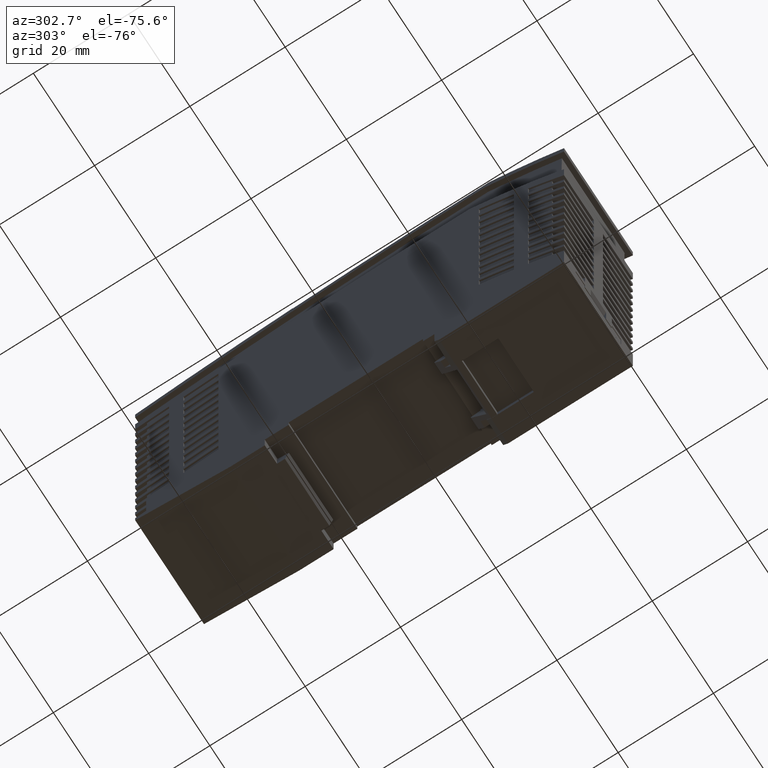
[diagram: clean part render]
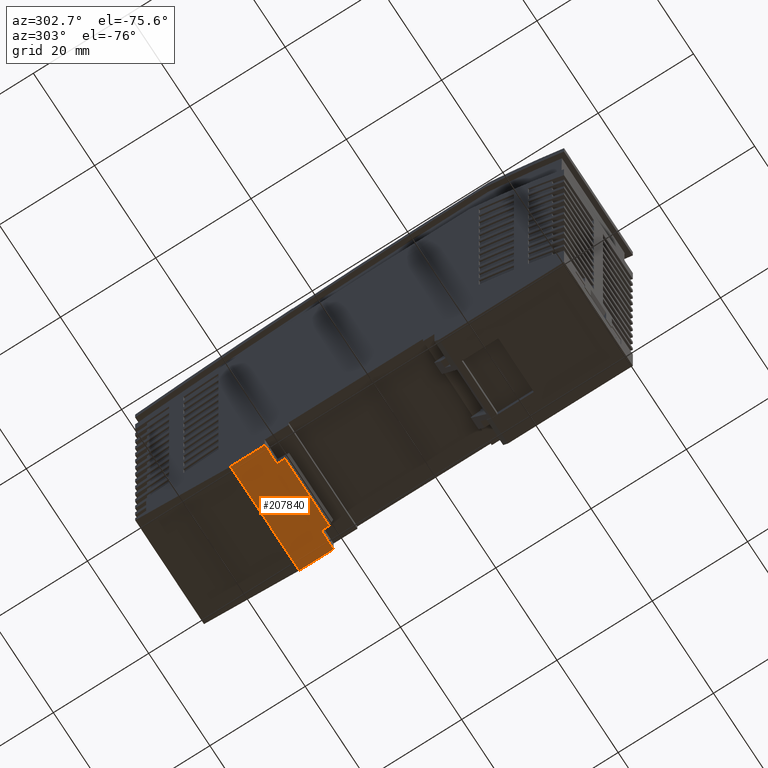
[diagram: same view with one face highlighted and labeled with its STEP entity id]
A machine part, auxiliary view. The second image highlights one B-rep face of the part: STEP entity #207840.
In plain terms, the highlighted planar face has unit normal (0, 0, 1).
Its self-contained STEP definition (entity closure, byte-faithful):
#72690=CARTESIAN_POINT('',(24.998476392667,2.02907227621137,1.));
#72700=VERTEX_POINT('',#72690);
#72730=CARTESIAN_POINT('',(0.,2.02907227621137,1.));
#72740=DIRECTION('',(-1.,0.,0.));
#72750=VECTOR('',#72740,1.);
#72760=LINE('',#72730,#72750);
#72770=CARTESIAN_POINT('',(17.7984763926468,2.02907227621137,1.));
#72780=VERTEX_POINT('',#72770);
#72790=EDGE_CURVE('',#72700,#72780,#72760,.T.);
#189950=CARTESIAN_POINT('',(17.7984763926468,2.02907227621137,-21.5));
#189960=VERTEX_POINT('',#189950);
#189990=CARTESIAN_POINT('',(0.,2.02907227621137,-21.5));
#190000=DIRECTION('',(1.,0.,0.));
#190010=VECTOR('',#190000,1.);
#190020=LINE('',#189990,#190010);
#190030=CARTESIAN_POINT('',(24.998476392667,2.02907227621137,-21.5));
#190040=VERTEX_POINT('',#190030);
#190050=EDGE_CURVE('',#189960,#190040,#190020,.T.);
#207350=CARTESIAN_POINT('',(17.7984763926468,2.02907227621137,-37.75));
#207360=DIRECTION('',(0.,1.,-0.));
#207370=DIRECTION('',(-1.,0.,0.));
#207380=AXIS2_PLACEMENT_3D('',#207350,#207360,#207370);
#207390=PLANE('',#207380);
#207400=CARTESIAN_POINT('',(24.998476392667,2.02907227621137,16.25));
#207410=DIRECTION('',(0.,0.,-1.));
#207420=VECTOR('',#207410,1.);
#207430=LINE('',#207400,#207420);
#207440=EDGE_CURVE('',#72700,#190040,#207430,.T.);
#207450=ORIENTED_EDGE('',*,*,#207440,.F.);
#207460=ORIENTED_EDGE('',*,*,#190050,.T.);
#207470=CARTESIAN_POINT('',(17.7984763926468,2.02907227621137,16.25));
#207480=DIRECTION('',(0.,0.,-1.));
#207490=VECTOR('',#207480,1.);
#207500=LINE('',#207470,#207490);
#207510=CARTESIAN_POINT('',(17.7984763926468,2.02907227621137,-17.5));
#207520=VERTEX_POINT('',#207510);
#207530=EDGE_CURVE('',#207520,#189960,#207500,.T.);
#207540=ORIENTED_EDGE('',*,*,#207530,.T.);
#207550=CARTESIAN_POINT('',(0.,2.02907227621137,-17.5));
#207560=DIRECTION('',(1.,0.,0.));
#207570=VECTOR('',#207560,1.);
#207580=LINE('',#207550,#207570);
#207590=CARTESIAN_POINT('',(16.1318097259789,2.02907227621137,-17.5));
#207600=VERTEX_POINT('',#207590);
#207610=EDGE_CURVE('',#207600,#207520,#207580,.T.);
#207620=ORIENTED_EDGE('',*,*,#207610,.T.);
#207630=CARTESIAN_POINT('',(16.1318097259789,2.02907227621137,16.25));
#207640=DIRECTION('',(0.,0.,1.));
#207650=VECTOR('',#207640,1.);
#207660=LINE('',#207630,#207650);
#207670=CARTESIAN_POINT('',(16.1318097259789,2.02907227621137,-3.));
#207680=VERTEX_POINT('',#207670);
#207690=EDGE_CURVE('',#207600,#207680,#207660,.T.);
#207700=ORIENTED_EDGE('',*,*,#207690,.F.);
#207710=CARTESIAN_POINT('',(0.,2.02907227621137,-3.));
#207720=DIRECTION('',(-1.,0.,0.));
#207730=VECTOR('',#207720,1.);
#207740=LINE('',#207710,#207730);
#207750=CARTESIAN_POINT('',(17.7984763926468,2.02907227621137,-3.));
#207760=VERTEX_POINT('',#207750);
#207770=EDGE_CURVE('',#207760,#207680,#207740,.T.);
#207780=ORIENTED_EDGE('',*,*,#207770,.T.);
#207790=EDGE_CURVE('',#72780,#207760,#207500,.T.);
#207800=ORIENTED_EDGE('',*,*,#207790,.T.);
#207810=ORIENTED_EDGE('',*,*,#72790,.T.);
#207820=EDGE_LOOP('',(#207810,#207800,#207780,#207700,#207620,#207540,
#207460,#207450));
#207830=FACE_OUTER_BOUND('',#207820,.T.);
#207840=ADVANCED_FACE('',(#207830),#207390,.F.);